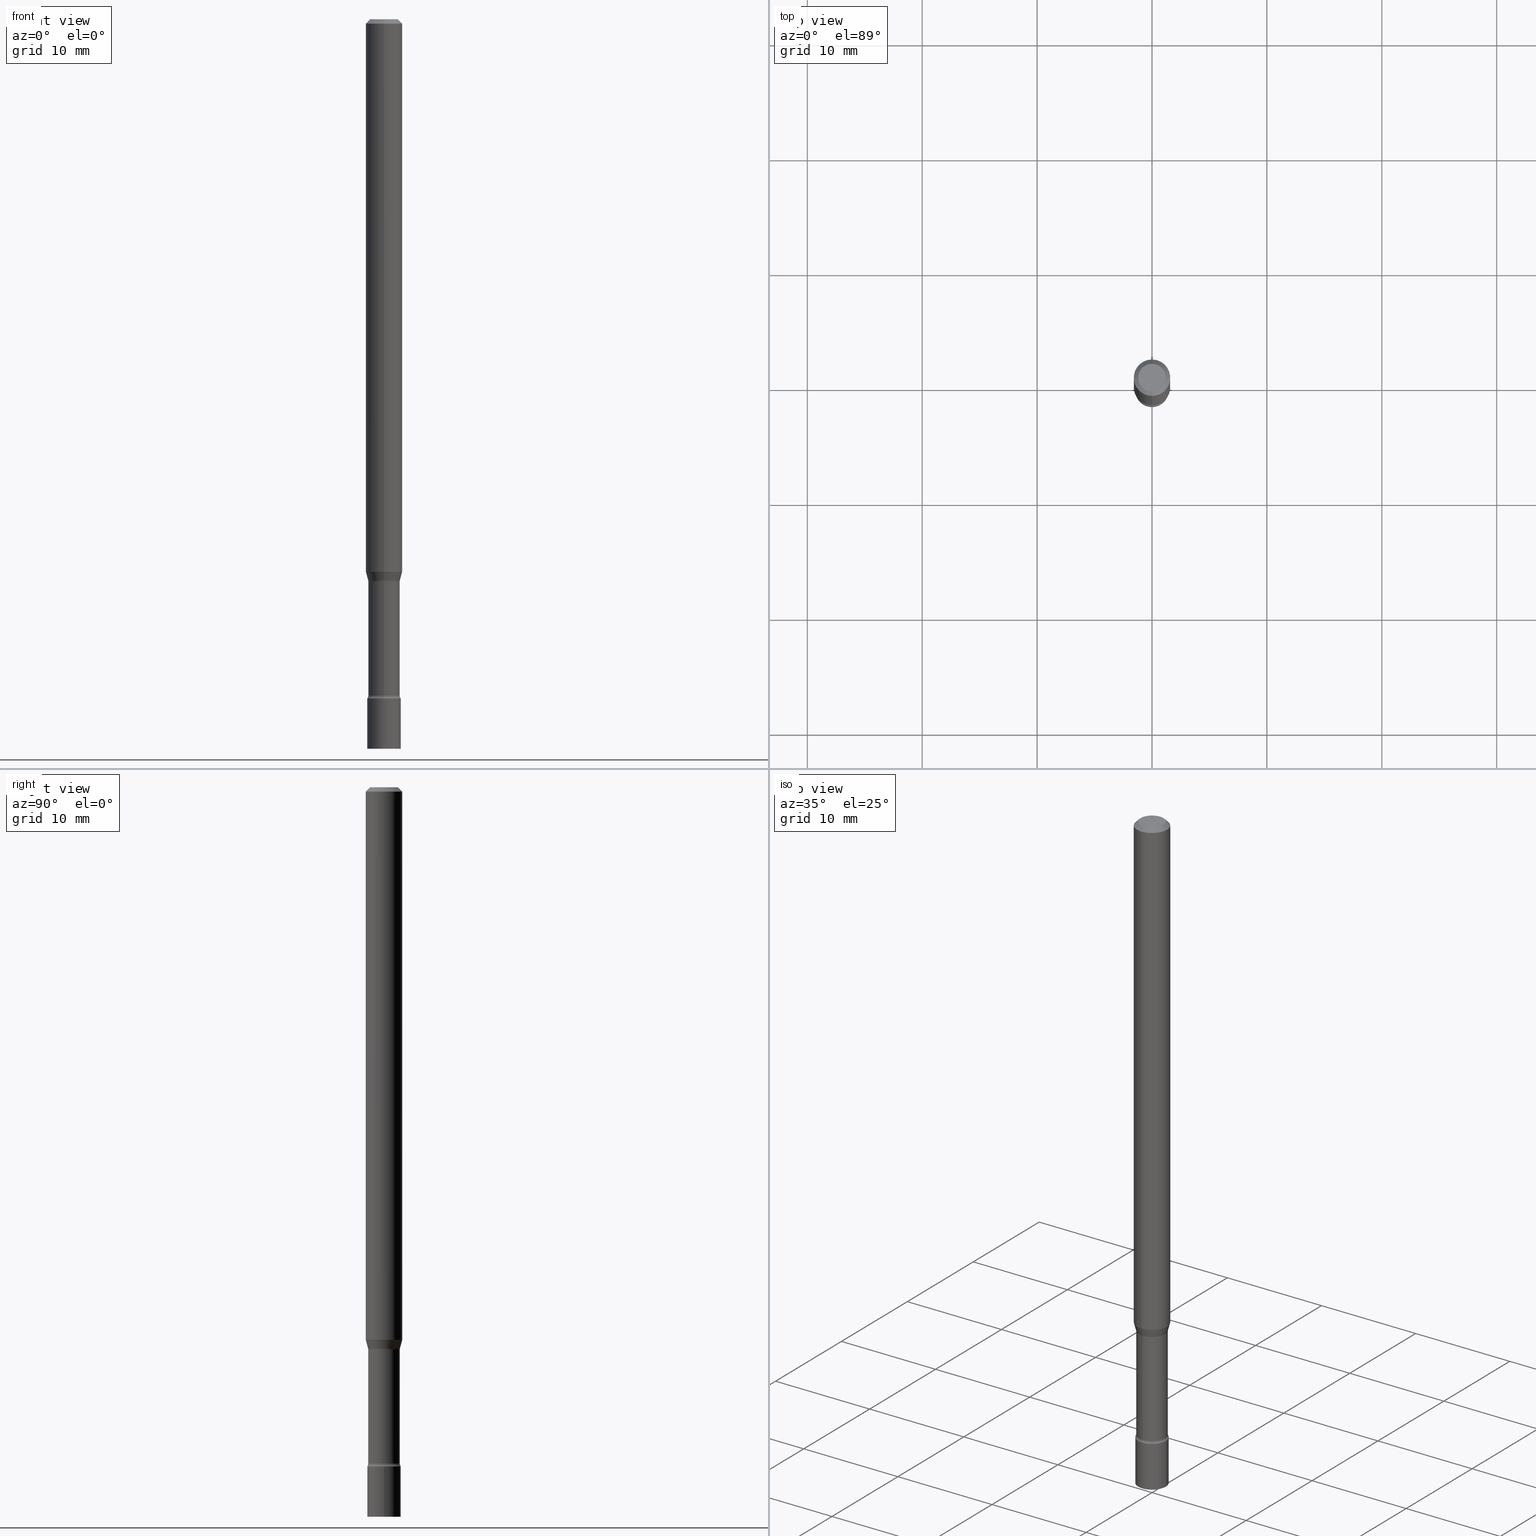
[diagram: canonical four-view strip — front | top / right | iso, engineering-drawing reading convention]
A machine part, canonical four-view strip (front | top / right | iso — engineering-drawing reading convention). The complete STEP part file that produces these views, byte-faithful:
ISO-10303-21;
HEADER;
FILE_DESCRIPTION (( 'STEP AP203' ),
    '1' );
FILE_NAME ('03560.STEP',
    '2024-03-08T21:49:26',
    ( '' ),
    ( '' ),
    'SwSTEP 2.0',
    'SolidWorks 2023',
    '' );
FILE_SCHEMA (( 'CONFIG_CONTROL_DESIGN' ));
ENDSEC;

DATA;
#1 = CARTESIAN_POINT ( 'NONE',  ( 4.702921816732696649E-29, -6.714356959460874574E-15, -1.923092501787273090 ) ) ;
#2 = ADVANCED_BREP_SHAPE_REPRESENTATION ( '03560', ( #334, #504, #87 ), #370 ) ;
#3 = EDGE_LOOP ( 'NONE', ( #201, #481 ) ) ;
#4 =( NAMED_UNIT ( * ) PLANE_ANGLE_UNIT ( ) SI_UNIT ( $, .RADIAN. ) );
#5 = CARTESIAN_POINT ( 'NONE',  ( 4.712356733047983098E-29, -6.727996510851133099E-15, -1.926974787463811012 ) ) ;
#6 = TOROIDAL_SURFACE ( 'NONE', #315, 0.06905000000000000027, 0.01499999999999999598 ) ;
#7 = AXIS2_PLACEMENT_3D ( 'NONE', #124, #43, #81 ) ;
#8 = AXIS2_PLACEMENT_3D ( 'NONE', #129, #52, #92 ) ;
#9 = FACE_OUTER_BOUND ( 'NONE', #12, .T. ) ;
#10 = CARTESIAN_POINT ( 'NONE',  ( 0.05750000000000000250, -4.015203539669603161E-16, 2.803801646082662941E-30 ) ) ;
#11 = ORIENTED_EDGE ( 'NONE', *, *, #142, .T. ) ;
#12 = EDGE_LOOP ( 'NONE', ( #433, #490, #127, #11 ) ) ;
#13 = EDGE_CURVE ( 'NONE', #91, #165, #487, .T. ) ;
#14 = CC_DESIGN_DATE_AND_TIME_ASSIGNMENT ( #347, #183, ( #28 ) ) ;
#15 = PERSON_AND_ORGANIZATION ( #431, #65 ) ;
#16 = DIRECTION ( 'NONE',  ( -2.445499533881974174E-29, 3.491437335032362503E-15, 1.000000000000000000 ) ) ;
#17 = CIRCLE ( 'NONE', #423, 0.04749999999999999362 ) ;
#18 = SECURITY_CLASSIFICATION_LEVEL ( 'unclassified' ) ;
#19 = DIRECTION ( 'NONE',  ( -2.445499533881974174E-29, 3.491437335032362109E-15, 1.000000000000000000 ) ) ;
#20 = APPLICATION_PROTOCOL_DEFINITION ( 'international standard', 'config_control_design', 1994, #23 ) ;
#21 = PRODUCT_DEFINITION_SHAPE ( 'NONE', 'NONE',  #238 ) ;
#22 = LINE ( 'NONE', #269, #121 ) ;
#23 = APPLICATION_CONTEXT ( 'configuration controlled 3d designs of mechanical parts and assemblies' ) ;
#24 = DATE_AND_TIME ( #217, #381 ) ;
#25 = CARTESIAN_POINT ( 'NONE',  ( 3.840483486783343535E-16, 0.05405000000000003552, -1.887121879584992843E-16 ) ) ;
#26 = CIRCLE ( 'NONE', #405, 0.01499999999999997689 ) ;
#27 = ORIENTED_EDGE ( 'NONE', *, *, #47, .F. ) ;
#28 = SECURITY_CLASSIFICATION ( '', '', #18 ) ;
#29 = CARTESIAN_POINT ( 'NONE',  ( 7.071406723349968136E-46, -1.009584058513850908E-31, -2.891600110888122331E-17 ) ) ;
#30 = EDGE_CURVE ( 'NONE', #435, #94, #331, .T. ) ;
#31 = DIRECTION ( 'NONE',  ( -6.982962677686265922E-15, -1.000000000000000000, 4.370956789862821150E-15 ) ) ;
#32 = PRODUCT_RELATED_PRODUCT_CATEGORY ( 'detail', '', ( #410 ) ) ;
#33 = FACE_OUTER_BOUND ( 'NONE', #204, .T. ) ;
#34 = ORIENTED_EDGE ( 'NONE', *, *, #472, .F. ) ;
#35 = CIRCLE ( 'NONE', #502, 0.01500000000000000291 ) ;
#36 = DIRECTION ( 'NONE',  ( -1.000000000000000000, 6.982962677686265922E-15, -4.876176775795935793E-29 ) ) ;
#37 = CC_DESIGN_APPROVAL ( #41, ( #28 ) ) ;
#38 = ORIENTED_EDGE ( 'NONE', *, *, #283, .F. ) ;
#39 = EDGE_CURVE ( 'NONE', #128, #350, #141, .T. ) ;
#40 = DIRECTION ( 'NONE',  ( -6.982962677686265922E-15, -1.000000000000000000, 5.006950670908182148E-15 ) ) ;
#41 = APPROVAL ( #503, 'UNSPECIFIED' ) ;
#42 = ORIENTED_EDGE ( 'NONE', *, *, #357, .F. ) ;
#43 = DIRECTION ( 'NONE',  ( -2.445499533881974174E-29, 3.491437335032362109E-15, 1.000000000000000000 ) ) ;
#44 = ORIENTED_EDGE ( 'NONE', *, *, #258, .T. ) ;
#45 = DIRECTION ( 'NONE',  ( -2.445499533881974174E-29, 3.491437335032362109E-15, 1.000000000000000000 ) ) ;
#46 = VECTOR ( 'NONE', #218, 39.37007874015748143 ) ;
#47 = EDGE_CURVE ( 'NONE', #240, #435, #99, .T. ) ;
#48 = FACE_OUTER_BOUND ( 'NONE', #514, .T. ) ;
#49 = ORIENTED_EDGE ( 'NONE', *, *, #181, .F. ) ;
#50 = CARTESIAN_POINT ( 'NONE',  ( 4.440892098500625669E-16, 0.06250000000000000000, -2.182148334395226318E-16 ) ) ;
#51 = FACE_OUTER_BOUND ( 'NONE', #520, .T. ) ;
#52 = DIRECTION ( 'NONE',  ( -2.445499533881974174E-29, 3.491437335032362109E-15, 1.000000000000000000 ) ) ;
#53 = DIRECTION ( 'NONE',  ( -2.445499533881974174E-29, 3.491437335032362109E-15, 1.000000000000000000 ) ) ;
#54 = AXIS2_PLACEMENT_3D ( 'NONE', #1, #356, #40 ) ;
#55 = AXIS2_PLACEMENT_3D ( 'NONE', #298, #56, #259 ) ;
#56 = DIRECTION ( 'NONE',  ( -2.445468806185136597E-29, 3.491481338843145583E-15, 1.000000000000000000 ) ) ;
#57 = CARTESIAN_POINT ( 'NONE',  ( -4.364351673553916201E-16, -0.06250000000000000000, 2.182148334395226318E-16 ) ) ;
#58 = EDGE_CURVE ( 'NONE', #386, #377, #89, .T. ) ;
#59 = DIRECTION ( 'NONE',  ( -6.982962677686265922E-15, -1.000000000000000000, 3.491437335032362109E-15 ) ) ;
#60 = DIRECTION ( 'NONE',  ( -2.445499533881974174E-29, 3.491437335032362109E-15, 1.000000000000000000 ) ) ;
#61 = CALENDAR_DATE ( 2024, 8, 3 ) ;
#62 = CARTESIAN_POINT ( 'NONE',  ( -4.287811248607203282E-16, -0.06250000000000005551, -0.01499999999999981209 ) ) ;
#63 = EDGE_CURVE ( 'NONE', #377, #337, #414, .T. ) ;
#64 = CIRCLE ( 'NONE', #389, 0.06250000000000000000 ) ;
#65 = ORGANIZATION ( 'UNSPECIFIED', 'UNSPECIFIED', '' ) ;
#66 = CALENDAR_DATE ( 2024, 8, 3 ) ;
#67 = CARTESIAN_POINT ( 'NONE',  ( 5.667272374969495812E-29, -8.091159324964724152E-15, -2.317429341715430802 ) ) ;
#68 = PLANE ( 'NONE',  #363 ) ;
#69 = SHAPE_DEFINITION_REPRESENTATION ( #21, #2 ) ;
#70 = DIRECTION ( 'NONE',  ( -1.000000000000000000, 6.982962677686265922E-15, -4.883557194083112340E-29 ) ) ;
#71 = AXIS2_PLACEMENT_3D ( 'NONE', #106, #188, #428 ) ;
#72 = DIRECTION ( 'NONE',  ( -6.982962677686265922E-15, -1.000000000000000000, 5.054297860618433521E-15 ) ) ;
#73 = PLANE ( 'NONE',  #130 ) ;
#74 = EDGE_LOOP ( 'NONE', ( #294, #497 ) ) ;
#75 = CARTESIAN_POINT ( 'NONE',  ( 4.702921816732696649E-29, -6.714356959460874574E-15, -1.923092501787273090 ) ) ;
#76 = ORIENTED_EDGE ( 'NONE', *, *, #145, .T. ) ;
#77 = CIRCLE ( 'NONE', #369, 0.05405000000000007021 ) ;
#78 = DIRECTION ( 'NONE',  ( -6.982962677686265922E-15, -1.000000000000000000, 5.054297860618433521E-15 ) ) ;
#79 = AXIS2_PLACEMENT_3D ( 'NONE', #328, #336, #452 ) ;
#80 = ORIENTED_EDGE ( 'NONE', *, *, #480, .F. ) ;
#81 = DIRECTION ( 'NONE',  ( -6.982962677686265922E-15, -1.000000000000000000, 5.006950670908182148E-15 ) ) ;
#82 = ORIENTED_EDGE ( 'NONE', *, *, #135, .F. ) ;
#83 = ADVANCED_FACE ( 'NONE', ( #51 ), #6, .F. ) ;
#84 = CARTESIAN_POINT ( 'NONE',  ( -3.809982129783424300E-16, -0.05456111260567072380, -1.923092501787272868 ) ) ;
#85 = CIRCLE ( 'NONE', #196, 0.01499999999999997689 ) ;
#86 = ORIENTED_EDGE ( 'NONE', *, *, #228, .T. ) ;
#87 = AXIS2_PLACEMENT_3D ( 'NONE', #293, #448, #464 ) ;
#88 = DIRECTION ( 'NONE',  ( -2.445499533881974174E-29, 3.491437335032362503E-15, 1.000000000000000000 ) ) ;
#89 = LINE ( 'NONE', #453, #459 ) ;
#90 = DIRECTION ( 'NONE',  ( -2.445499533881974174E-29, 3.491437335032362109E-15, 1.000000000000000000 ) ) ;
#91 = VERTEX_POINT ( 'NONE', #209 ) ;
#92 = DIRECTION ( 'NONE',  ( -6.982962677686265922E-15, -1.000000000000000000, 3.491437335032361714E-15 ) ) ;
#93 = EDGE_CURVE ( 'NONE', #128, #330, #26, .T. ) ;
#94 = VERTEX_POINT ( 'NONE', #214 ) ;
#95 = CC_DESIGN_PERSON_AND_ORGANIZATION_ASSIGNMENT ( #150, #461, ( #257 ) ) ;
#96 = VECTOR ( 'NONE', #144, 39.37007874015748143 ) ;
#97 = AXIS2_PLACEMENT_3D ( 'NONE', #213, #90, #59 ) ;
#98 =( LENGTH_UNIT ( ) NAMED_UNIT ( * ) SI_UNIT ( $, .METRE. ) );
#99 = LINE ( 'NONE', #10, #170 ) ;
#100 = CALENDAR_DATE ( 2024, 8, 3 ) ;
#101 = DIRECTION ( 'NONE',  ( -2.445499533881974174E-29, 3.491437335032362109E-15, 1.000000000000000000 ) ) ;
#102 = EDGE_CURVE ( 'NONE', #175, #377, #64, .T. ) ;
#103 = AXIS2_PLACEMENT_3D ( 'NONE', #412, #250, #368 ) ;
#104 = VECTOR ( 'NONE', #432, 39.37007874015748143 ) ;
#105 = PERSON_AND_ORGANIZATION ( #431, #65 ) ;
#106 = CARTESIAN_POINT ( 'NONE',  ( 4.906297590423963147E-16, 0.06904999999999326954, -1.926974787463811456 ) ) ;
#107 = COORDINATED_UNIVERSAL_TIME_OFFSET ( 5, 0, .BEHIND. ) ;
#108 = CARTESIAN_POINT ( 'NONE',  ( -3.774291327288865224E-16, -0.05405000000000816096, -2.317429341715430358 ) ) ;
#109 = CARTESIAN_POINT ( 'NONE',  ( -4.821735728941896048E-16, -0.06905000000000673099, -1.926974787463810790 ) ) ;
#110 = EDGE_CURVE ( 'NONE', #165, #91, #17, .T. ) ;
#111 = CC_DESIGN_PERSON_AND_ORGANIZATION_ASSIGNMENT ( #105, #268, ( #28 ) ) ;
#112 = ORIENTED_EDGE ( 'NONE', *, *, #30, .F. ) ;
#113 = CIRCLE ( 'NONE', #308, 0.06250000000000000000 ) ;
#114 = CIRCLE ( 'NONE', #55, 0.05750000000000000250 ) ;
#115 = CARTESIAN_POINT ( 'NONE',  ( -0.05750000000000000250, 4.085620730620576246E-16, -2.828387676896570712E-30 ) ) ;
#116 = DIRECTION ( 'NONE',  ( -2.438088387897960049E-29, 3.491481338843145188E-15, 1.000000000000000000 ) ) ;
#117 = ORIENTED_EDGE ( 'NONE', *, *, #58, .F. ) ;
#118 = CARTESIAN_POINT ( 'NONE',  ( 3.668249300822969055E-31, -5.237156002548554183E-17, -0.01500000000000003067 ) ) ;
#119 = ORIENTED_EDGE ( 'NONE', *, *, #242, .T. ) ;
#120 = CLOSED_SHELL ( 'NONE', ( #83, #407, #208, #507, #489, #378, #297, #469, #279, #179, #305, #500, #447, #221 ) ) ;
#121 = VECTOR ( 'NONE', #186, 39.37007874015748143 ) ;
#122 = DIRECTION ( 'NONE',  ( -2.445499533881974174E-29, 3.491437335032362109E-15, 1.000000000000000000 ) ) ;
#123 = ORIENTED_EDGE ( 'NONE', *, *, #320, .T. ) ;
#124 = CARTESIAN_POINT ( 'NONE',  ( 4.702921816732696649E-29, -6.714356959460874574E-15, -1.923092501787273090 ) ) ;
#125 = EDGE_LOOP ( 'NONE', ( #335, #353, #402, #177 ) ) ;
#126 = CARTESIAN_POINT ( 'NONE',  ( 0.05750000000000000250, -8.526197429454961062E-15, -2.326999999999999957 ) ) ;
#127 = ORIENTED_EDGE ( 'NONE', *, *, #93, .T. ) ;
#128 = VERTEX_POINT ( 'NONE', #108 ) ;
#129 = CARTESIAN_POINT ( 'NONE',  ( 0.000000000000000000, 0.000000000000000000, 0.000000000000000000 ) ) ;
#130 = AXIS2_PLACEMENT_3D ( 'NONE', #157, #205, #515 ) ;
#131 = ORIENTED_EDGE ( 'NONE', *, *, #181, .T. ) ;
#132 = AXIS2_PLACEMENT_3D ( 'NONE', #251, #365, #411 ) ;
#133 = CARTESIAN_POINT ( 'NONE',  ( 0.000000000000000000, 0.000000000000000000, 0.000000000000000000 ) ) ;
#134 = ORIENTED_EDGE ( 'NONE', *, *, #203, .T. ) ;
#135 = EDGE_CURVE ( 'NONE', #94, #435, #325, .T. ) ;
#136 = ORIENTED_EDGE ( 'NONE', *, *, #286, .F. ) ;
#137 = DIRECTION ( 'NONE',  ( -2.445499533881974174E-29, 3.491437335032362109E-15, 1.000000000000000000 ) ) ;
#138 = ORIENTED_EDGE ( 'NONE', *, *, #465, .F. ) ;
#139 = CIRCLE ( 'NONE', #54, 0.05456111260566401389 ) ;
#140 = APPROVAL_STATUS ( 'not_yet_approved' ) ;
#141 = LINE ( 'NONE', #252, #396 ) ;
#142 = EDGE_CURVE ( 'NONE', #330, #512, #354, .T. ) ;
#143 = COORDINATED_UNIVERSAL_TIME_OFFSET ( 5, 0, .BEHIND. ) ;
#144 = DIRECTION ( 'NONE',  ( 1.839019923739602682E-15, 0.2588190451025252914, 0.9659258262890670910 ) ) ;
#145 = EDGE_CURVE ( 'NONE', #339, #512, #85, .T. ) ;
#146 = DATE_AND_TIME ( #100, #451 ) ;
#147 = DIRECTION ( 'NONE',  ( -6.982962677686266711E-15, -1.000000000000000000, 3.491437335032362109E-15 ) ) ;
#148 = AXIS2_PLACEMENT_3D ( 'NONE', #319, #282, #78 ) ;
#149 = AXIS2_PLACEMENT_3D ( 'NONE', #249, #413, #207 ) ;
#150 = PERSON_AND_ORGANIZATION ( #431, #65 ) ;
#151 = DIRECTION ( 'NONE',  ( 2.445499533881973613E-29, -3.491437335032362503E-15, -1.000000000000000000 ) ) ;
#152 = EDGE_CURVE ( 'NONE', #339, #327, #153, .T. ) ;
#153 = LINE ( 'NONE', #25, #246 ) ;
#154 = CARTESIAN_POINT ( 'NONE',  ( -3.773273898774340269E-16, -0.04749999999999999362, 1.369272723051559529E-16 ) ) ;
#155 = CIRCLE ( 'NONE', #509, 0.05456111260566401389 ) ;
#156 = EDGE_CURVE ( 'NONE', #366, #327, #379, .T. ) ;
#157 = CARTESIAN_POINT ( 'NONE',  ( 4.015203539670172127E-16, 0.05749999999999187705, -2.327000000000000401 ) ) ;
#158 = EDGE_LOOP ( 'NONE', ( #138, #329, #400, #493 ) ) ;
#159 = CARTESIAN_POINT ( 'NONE',  ( 4.440892098501091590E-16, 0.06249999999999995143, -0.01500000000000024751 ) ) ;
#160 = ORIENTED_EDGE ( 'NONE', *, *, #47, .T. ) ;
#161 = DIRECTION ( 'NONE',  ( 2.438088387897960049E-29, -3.491481338843145188E-15, -1.000000000000000000 ) ) ;
#162 = EDGE_LOOP ( 'NONE', ( #195, #136, #134, #244 ) ) ;
#163 = AXIS2_PLACEMENT_3D ( 'NONE', #223, #429, #307 ) ;
#164 = DIRECTION ( 'NONE',  ( -2.445499533881974174E-29, 3.491437335032362109E-15, 1.000000000000000000 ) ) ;
#165 = VERTEX_POINT ( 'NONE', #154 ) ;
#166 = UNCERTAINTY_MEASURE_WITH_UNIT (LENGTH_MEASURE( 1.000000000000000082E-05 ), #408, 'distance_accuracy_value', 'NONE');
#167 = CARTESIAN_POINT ( 'NONE',  ( 5.667201165703240905E-29, -8.091261300686981315E-15, -2.317429341715430802 ) ) ;
#168 = ORIENTED_EDGE ( 'NONE', *, *, #93, .F. ) ;
#169 = DIRECTION ( 'NONE',  ( -2.445499533881974174E-29, 3.491437335032362503E-15, 1.000000000000000000 ) ) ;
#170 = VECTOR ( 'NONE', #256, 39.37007874015748143 ) ;
#171 = AXIS2_PLACEMENT_3D ( 'NONE', #394, #352, #232 ) ;
#172 = ORIENTED_EDGE ( 'NONE', *, *, #243, .T. ) ;
#173 = CC_DESIGN_APPROVAL ( #454, ( #257 ) ) ;
#174 = FACE_OUTER_BOUND ( 'NONE', #468, .T. ) ;
#175 = VERTEX_POINT ( 'NONE', #220 ) ;
#176 = LINE ( 'NONE', #50, #309 ) ;
#177 = ORIENTED_EDGE ( 'NONE', *, *, #102, .F. ) ;
#178 = ORIENTED_EDGE ( 'NONE', *, *, #39, .F. ) ;
#179 = ADVANCED_FACE ( 'NONE', ( #425 ), #348, .F. ) ;
#180 = PERSON_AND_ORGANIZATION ( #431, #65 ) ;
#181 = EDGE_CURVE ( 'NONE', #91, #318, #22, .T. ) ;
#182 = AXIS2_PLACEMENT_3D ( 'NONE', #265, #466, #349 ) ;
#183 = DATE_TIME_ROLE ( 'classification_date' ) ;
#184 = LINE ( 'NONE', #62, #46 ) ;
#185 = PERSON_AND_ORGANIZATION ( #431, #65 ) ;
#186 = DIRECTION ( 'NONE',  ( 4.937700262164548042E-15, 0.7071067811865451302, -0.7071067811865499042 ) ) ;
#187 = MECHANICAL_CONTEXT ( 'NONE', #239, 'mechanical' ) ;
#188 = DIRECTION ( 'NONE',  ( 1.000000000000000000, -7.105427357601001070E-15, 4.926314969650821947E-29 ) ) ;
#189 = AXIS2_PLACEMENT_3D ( 'NONE', #304, #19, #72 ) ;
#190 = EDGE_LOOP ( 'NONE', ( #34, #80 ) ) ;
#191 = DATE_TIME_ROLE ( 'creation_date' ) ;
#192 = CARTESIAN_POINT ( 'NONE',  ( 4.906297590424060768E-16, 0.06904999999999195115, -2.317429341715430802 ) ) ;
#193 = CARTESIAN_POINT ( 'NONE',  ( 0.05750000000000000250, -9.130223701074824963E-15, -2.500000000000000000 ) ) ;
#194 = DIRECTION ( 'NONE',  ( 1.000000000000000000, -6.982962677686265922E-15, 4.876176775795935232E-29 ) ) ;
#195 = ORIENTED_EDGE ( 'NONE', *, *, #156, .F. ) ;
#196 = AXIS2_PLACEMENT_3D ( 'NONE', #192, #506, #463 ) ;
#197 = CIRCLE ( 'NONE', #132, 0.05750000000000000250 ) ;
#198 = CARTESIAN_POINT ( 'NONE',  ( -4.015203539669033702E-16, -0.05750000000000811406, -2.326999999999999957 ) ) ;
#199 = ORIENTED_EDGE ( 'NONE', *, *, #152, .T. ) ;
#200 = DIRECTION ( 'NONE',  ( -6.982962677686265922E-15, -1.000000000000000000, 5.006950670908182148E-15 ) ) ;
#201 = ORIENTED_EDGE ( 'NONE', *, *, #13, .T. ) ;
#202 = FACE_OUTER_BOUND ( 'NONE', #74, .T. ) ;
#203 = EDGE_CURVE ( 'NONE', #386, #350, #35, .T. ) ;
#204 = EDGE_LOOP ( 'NONE', ( #443, #483, #131, #119 ) ) ;
#205 = DIRECTION ( 'NONE',  ( -2.445499533881973613E-29, 3.491437335032362503E-15, 1.000000000000000000 ) ) ;
#206 = ORIENTED_EDGE ( 'NONE', *, *, #63, .F. ) ;
#207 = DIRECTION ( 'NONE',  ( -6.982962677686265922E-15, -1.000000000000000000, 3.491437335032362109E-15 ) ) ;
#208 = ADVANCED_FACE ( 'NONE', ( #456 ), #479, .F. ) ;
#209 = CARTESIAN_POINT ( 'NONE',  ( 3.840629472727447874E-16, 0.04749999999999999362, -1.947592745229184365E-16 ) ) ;
#210 = CYLINDRICAL_SURFACE ( 'NONE', #97, 0.06250000000000000000 ) ;
#211 = CONICAL_SURFACE ( 'NONE', #274, 0.05456111260566401389, 0.2617993877991506291 ) ;
#212 = DIRECTION ( 'NONE',  ( -6.982962677686265922E-15, -1.000000000000000000, 3.491437335032361714E-15 ) ) ;
#213 = CARTESIAN_POINT ( 'NONE',  ( 0.000000000000000000, 0.000000000000000000, 0.000000000000000000 ) ) ;
#214 = CARTESIAN_POINT ( 'NONE',  ( -0.05750000000000000250, -8.018128138235874628E-15, -2.326999999999999957 ) ) ;
#215 = CC_DESIGN_DATE_AND_TIME_ASSIGNMENT ( #146, #191, ( #238 ) ) ;
#216 = DIRECTION ( 'NONE',  ( -6.982962677686265922E-15, -1.000000000000000000, 4.370956789862821150E-15 ) ) ;
#217 = CALENDAR_DATE ( 2024, 8, 3 ) ;
#218 = DIRECTION ( 'NONE',  ( -4.851104656540964275E-15, -0.7071067811865500152, -0.7071067811865450192 ) ) ;
#219 = AXIS2_PLACEMENT_3D ( 'NONE', #227, #391, #31 ) ;
#220 = CARTESIAN_POINT ( 'NONE',  ( 4.440892098501089617E-16, 0.06249999999999341499, -1.893464170676043556 ) ) ;
#221 = ADVANCED_FACE ( 'NONE', ( #312 ), #340, .F. ) ;
#222 = PERSON_AND_ORGANIZATION_ROLE ( 'design_owner' ) ;
#223 = CARTESIAN_POINT ( 'NONE',  ( 5.690677415343354746E-29, -8.124574678620306876E-15, -2.326999999999999957 ) ) ;
#224 = CARTESIAN_POINT ( 'NONE',  ( 5.667201165703240905E-29, -8.091261300686981315E-15, -2.317429341715430802 ) ) ;
#225 = AXIS2_PLACEMENT_3D ( 'NONE', #467, #151, #311 ) ;
#226 = AXIS2_PLACEMENT_3D ( 'NONE', #167, #137, #338 ) ;
#227 = CARTESIAN_POINT ( 'NONE',  ( 4.630465746810483231E-29, -6.610911498044426142E-15, -1.893464170676043334 ) ) ;
#228 = EDGE_CURVE ( 'NONE', #327, #350, #444, .T. ) ;
#229 = EDGE_CURVE ( 'NONE', #377, #175, #470, .T. ) ;
#230 = CARTESIAN_POINT ( 'NONE',  ( 0.000000000000000000, 0.000000000000000000, 0.000000000000000000 ) ) ;
#231 = ORIENTED_EDGE ( 'NONE', *, *, #229, .T. ) ;
#232 = DIRECTION ( 'NONE',  ( -6.982962677686265922E-15, -1.000000000000000000, 4.751039988981327336E-15 ) ) ;
#233 = VECTOR ( 'NONE', #16, 39.37007874015748143 ) ;
#234 = ORIENTED_EDGE ( 'NONE', *, *, #228, .F. ) ;
#235 = AXIS2_PLACEMENT_3D ( 'NONE', #230, #276, #194 ) ;
#236 = TOROIDAL_SURFACE ( 'NONE', #226, 0.06905000000000004190, 0.01499999999999997863 ) ;
#237 = CARTESIAN_POINT ( 'NONE',  ( -4.364351673553451266E-16, -0.06250000000000657807, -1.893464170676043112 ) ) ;
#238 = PRODUCT_DEFINITION ( 'UNKNOWN', '', #257, #441 ) ;
#239 = APPLICATION_CONTEXT ( 'configuration controlled 3d designs of mechanical parts and assemblies' ) ;
#240 = VERTEX_POINT ( 'NONE', #193 ) ;
#241 = CARTESIAN_POINT ( 'NONE',  ( 3.668249300822969055E-31, -5.237156002548554183E-17, -0.01500000000000003067 ) ) ;
#242 = EDGE_CURVE ( 'NONE', #318, #337, #113, .T. ) ;
#243 = EDGE_CURVE ( 'NONE', #339, #128, #77, .T. ) ;
#244 = ORIENTED_EDGE ( 'NONE', *, *, #322, .T. ) ;
#245 = DIRECTION ( 'NONE',  ( -2.445499533881974174E-29, 3.491437335032362109E-15, 1.000000000000000000 ) ) ;
#246 = VECTOR ( 'NONE', #271, 39.37007874015748143 ) ;
#247 = LENGTH_MEASURE_WITH_UNIT ( LENGTH_MEASURE( 0.02539999999999999897 ), #98 );
#248 = EDGE_LOOP ( 'NONE', ( #42, #484, #160, #82 ) ) ;
#249 = CARTESIAN_POINT ( 'NONE',  ( 0.000000000000000000, 0.000000000000000000, 0.000000000000000000 ) ) ;
#250 = DIRECTION ( 'NONE',  ( -2.445468806185136597E-29, 3.491481338843145583E-15, 1.000000000000000000 ) ) ;
#251 = CARTESIAN_POINT ( 'NONE',  ( 6.113672015462842613E-29, -8.728703347107864943E-15, -2.500000000000000000 ) ) ;
#252 = CARTESIAN_POINT ( 'NONE',  ( -3.774291327289429259E-16, -0.05405000000000003552, 1.887121879584992843E-16 ) ) ;
#253 = DIMENSIONAL_EXPONENTS ( 1.000000000000000000, 0.000000000000000000, 0.000000000000000000, 0.000000000000000000, 0.000000000000000000, 0.000000000000000000, 0.000000000000000000 ) ;
#254 = FACE_OUTER_BOUND ( 'NONE', #321, .T. ) ;
#255 = AXIS2_PLACEMENT_3D ( 'NONE', #224, #498, #422 ) ;
#256 = DIRECTION ( 'NONE',  ( -2.445468806185136877E-29, 3.491481338843145188E-15, 1.000000000000000000 ) ) ;
#257 = PRODUCT_DEFINITION_FORMATION_WITH_SPECIFIED_SOURCE ( 'ANY', '', #410, .NOT_KNOWN. ) ;
#258 = EDGE_CURVE ( 'NONE', #165, #337, #184, .T. ) ;
#259 = DIRECTION ( 'NONE',  ( 1.000000000000000000, -6.982962677686256455E-15, 0.000000000000000000 ) ) ;
#260 = DIRECTION ( 'NONE',  ( -1.807323732225332900E-15, -0.2588190451025185190, 0.9659258262890689783 ) ) ;
#261 = EDGE_CURVE ( 'NONE', #366, #175, #382, .T. ) ;
#262 = PERSON_AND_ORGANIZATION_ROLE ( 'creator' ) ;
#263 = DIRECTION ( 'NONE',  ( -6.982962677686265922E-15, -1.000000000000000000, 5.054297860618426422E-15 ) ) ;
#264 = AXIS2_PLACEMENT_3D ( 'NONE', #446, #300, #409 ) ;
#265 = CARTESIAN_POINT ( 'NONE',  ( 5.690605911992812897E-29, -8.124677075487999464E-15, -2.326999999999999957 ) ) ;
#266 = CIRCLE ( 'NONE', #488, 0.05405000000000007021 ) ;
#267 = LOCAL_TIME ( 16, 49, 26.00000000000000000, #107 ) ;
#268 = PERSON_AND_ORGANIZATION_ROLE ( 'classification_officer' ) ;
#269 = CARTESIAN_POINT ( 'NONE',  ( 4.364351673553919652E-16, 0.06249999999999995143, -0.01500000000000024751 ) ) ;
#270 = APPROVAL_DATE_TIME ( #343, #41 ) ;
#271 = DIRECTION ( 'NONE',  ( -2.445499533881974174E-29, 3.491437335032362503E-15, 1.000000000000000000 ) ) ;
#272 = ADVANCED_FACE ( 'NONE', ( #383 ), #68, .T. ) ;
#273 = DIRECTION ( 'NONE',  ( -2.445499533881974174E-29, 3.491437335032362109E-15, 1.000000000000000000 ) ) ;
#274 = AXIS2_PLACEMENT_3D ( 'NONE', #75, #45, #278 ) ;
#275 = CYLINDRICAL_SURFACE ( 'NONE', #235, 0.05750000000000000250 ) ;
#276 = DIRECTION ( 'NONE',  ( -2.445468806185136597E-29, 3.491481338843145583E-15, 1.000000000000000000 ) ) ;
#277 = ORIENTED_EDGE ( 'NONE', *, *, #286, .T. ) ;
#278 = DIRECTION ( 'NONE',  ( -6.982962677686265922E-15, -1.000000000000000000, 5.006950670908182148E-15 ) ) ;
#279 = ADVANCED_FACE ( 'NONE', ( #33 ), #281, .T. ) ;
#280 = ORIENTED_EDGE ( 'NONE', *, *, #110, .F. ) ;
#281 = CONICAL_SURFACE ( 'NONE', #519, 0.06250000000000000000, 0.7853981633974483900 ) ;
#282 = DIRECTION ( 'NONE',  ( -2.445499533881974174E-29, 3.491437335032362109E-15, 1.000000000000000000 ) ) ;
#283 = EDGE_CURVE ( 'NONE', #366, #386, #139, .T. ) ;
#284 = ORIENTED_EDGE ( 'NONE', *, *, #395, .T. ) ;
#285 = CARTESIAN_POINT ( 'NONE',  ( 4.702921816732696649E-29, -6.714356959460874574E-15, -1.923092501787273090 ) ) ;
#286 = EDGE_CURVE ( 'NONE', #386, #366, #155, .T. ) ;
#287 = CYLINDRICAL_SURFACE ( 'NONE', #8, 0.05405000000000003552 ) ;
#288 = ADVANCED_FACE ( 'NONE', ( #317 ), #510, .T. ) ;
#289 = CLOSED_SHELL ( 'NONE', ( #419, #288, #314, #272 ) ) ;
#290 = AXIS2_PLACEMENT_3D ( 'NONE', #442, #116, #359 ) ;
#291 = CYLINDRICAL_SURFACE ( 'NONE', #316, 0.05750000000000000250 ) ;
#292 = ORIENTED_EDGE ( 'NONE', *, *, #39, .T. ) ;
#293 = CARTESIAN_POINT ( 'NONE',  ( 0.000000000000000000, 0.000000000000000000, 0.000000000000000000 ) ) ;
#294 = ORIENTED_EDGE ( 'NONE', *, *, #142, .F. ) ;
#295 = CC_DESIGN_PERSON_AND_ORGANIZATION_ASSIGNMENT ( #341, #262, ( #238 ) ) ;
#296 = ORIENTED_EDGE ( 'NONE', *, *, #371, .T. ) ;
#297 = ADVANCED_FACE ( 'NONE', ( #475 ), #211, .T. ) ;
#298 = CARTESIAN_POINT ( 'NONE',  ( 6.113672015462842613E-29, -8.728703347107864943E-15, -2.500000000000000000 ) ) ;
#299 = AXIS2_PLACEMENT_3D ( 'NONE', #346, #273, #501 ) ;
#300 = DIRECTION ( 'NONE',  ( -2.445499533881974174E-29, 3.491437335032362109E-15, 1.000000000000000000 ) ) ;
#301 = APPROVAL_ROLE ( '' ) ;
#302 = ORIENTED_EDGE ( 'NONE', *, *, #322, .F. ) ;
#303 = APPROVAL_STATUS ( 'not_yet_approved' ) ;
#304 = CARTESIAN_POINT ( 'NONE',  ( 4.712415944545066253E-29, -6.727911716617200935E-15, -1.926974787463811012 ) ) ;
#305 = ADVANCED_FACE ( 'NONE', ( #202 ), #73, .F. ) ;
#306 = APPROVAL_ROLE ( '' ) ;
#307 = DIRECTION ( 'NONE',  ( -6.982962677686265922E-15, -1.000000000000000000, 4.751039988981327336E-15 ) ) ;
#308 = AXIS2_PLACEMENT_3D ( 'NONE', #426, #351, #508 ) ;
#309 = VECTOR ( 'NONE', #88, 39.37007874015748143 ) ;
#310 = APPROVAL_ROLE ( '' ) ;
#311 = DIRECTION ( 'NONE',  ( 6.982962677686265922E-15, 1.000000000000000000, -3.491437335032362503E-15 ) ) ;
#312 = FACE_OUTER_BOUND ( 'NONE', #162, .T. ) ;
#313 = DIRECTION ( 'NONE',  ( -6.982962677686265922E-15, -1.000000000000000000, 5.054297860618426422E-15 ) ) ;
#314 = ADVANCED_FACE ( 'NONE', ( #323 ), #275, .T. ) ;
#315 = AXIS2_PLACEMENT_3D ( 'NONE', #5, #53, #212 ) ;
#316 = AXIS2_PLACEMENT_3D ( 'NONE', #133, #492, #445 ) ;
#317 = FACE_OUTER_BOUND ( 'NONE', #474, .T. ) ;
#318 = VERTEX_POINT ( 'NONE', #159 ) ;
#319 = CARTESIAN_POINT ( 'NONE',  ( 4.712415944545066253E-29, -6.727911716617200935E-15, -1.926974787463811012 ) ) ;
#320 = EDGE_CURVE ( 'NONE', #128, #339, #266, .T. ) ;
#321 = EDGE_LOOP ( 'NONE', ( #362, #486, #112, #27 ) ) ;
#322 = EDGE_CURVE ( 'NONE', #350, #327, #397, .T. ) ;
#323 = FACE_OUTER_BOUND ( 'NONE', #248, .T. ) ;
#324 = ORIENTED_EDGE ( 'NONE', *, *, #156, .T. ) ;
#325 = CIRCLE ( 'NONE', #182, 0.05750000000000000250 ) ;
#326 = FACE_OUTER_BOUND ( 'NONE', #360, .T. ) ;
#327 = VERTEX_POINT ( 'NONE', #364 ) ;
#328 = CARTESIAN_POINT ( 'NONE',  ( 3.668249300822969055E-31, -5.237156002548554183E-17, -0.01500000000000003067 ) ) ;
#329 = ORIENTED_EDGE ( 'NONE', *, *, #102, .T. ) ;
#330 = VERTEX_POINT ( 'NONE', #198 ) ;
#331 = CIRCLE ( 'NONE', #103, 0.05750000000000000250 ) ;
#332 = AXIS2_PLACEMENT_3D ( 'NONE', #241, #245, #361 ) ;
#333 = CC_DESIGN_SECURITY_CLASSIFICATION ( #28, ( #257 ) ) ;
#334 = MANIFOLD_SOLID_BREP ( 'Body-Move/Copy2[1]', #289 ) ;
#335 = ORIENTED_EDGE ( 'NONE', *, *, #261, .F. ) ;
#336 = DIRECTION ( 'NONE',  ( 2.445499533881974174E-29, -3.491437335032362109E-15, -1.000000000000000000 ) ) ;
#337 = VERTEX_POINT ( 'NONE', #434 ) ;
#338 = DIRECTION ( 'NONE',  ( -6.982962677686265922E-15, -1.000000000000000000, 3.491437335032361714E-15 ) ) ;
#339 = VERTEX_POINT ( 'NONE', #439 ) ;
#340 = TOROIDAL_SURFACE ( 'NONE', #299, 0.06905000000000000027, 0.01499999999999999598 ) ;
#341 = PERSON_AND_ORGANIZATION ( #431, #65 ) ;
#342 = EDGE_LOOP ( 'NONE', ( #440, #76, #296, #168 ) ) ;
#343 = DATE_AND_TIME ( #66, #267 ) ;
#344 = CARTESIAN_POINT ( 'NONE',  ( 3.876800221694809047E-16, 0.05456111260565730398, -1.923092501787273534 ) ) ;
#345 = PERSON_AND_ORGANIZATION ( #431, #65 ) ;
#346 = CARTESIAN_POINT ( 'NONE',  ( 4.712356733047983098E-29, -6.727996510851133099E-15, -1.926974787463811012 ) ) ;
#347 = DATE_AND_TIME ( #496, #462 ) ;
#348 = PLANE ( 'NONE',  #225 ) ;
#349 = DIRECTION ( 'NONE',  ( 1.000000000000000000, -6.982962677686273810E-15, 0.000000000000000000 ) ) ;
#350 = VERTEX_POINT ( 'NONE', #436 ) ;
#351 = DIRECTION ( 'NONE',  ( -2.445499533881974174E-29, 3.491437335032362109E-15, 1.000000000000000000 ) ) ;
#352 = DIRECTION ( 'NONE',  ( -2.445499533881974174E-29, 3.491437335032362109E-15, 1.000000000000000000 ) ) ;
#353 = ORIENTED_EDGE ( 'NONE', *, *, #283, .T. ) ;
#354 = CIRCLE ( 'NONE', #163, 0.05750000000000000250 ) ;
#355 = ORIENTED_EDGE ( 'NONE', *, *, #395, .F. ) ;
#356 = DIRECTION ( 'NONE',  ( -2.445499533881974174E-29, 3.491437335032362109E-15, 1.000000000000000000 ) ) ;
#357 = EDGE_CURVE ( 'NONE', #476, #94, #471, .T. ) ;
#358 = ORIENTED_EDGE ( 'NONE', *, *, #152, .F. ) ;
#359 = DIRECTION ( 'NONE',  ( 1.000000000000000000, -6.982962677686265922E-15, 4.876176775795935793E-29 ) ) ;
#360 = EDGE_LOOP ( 'NONE', ( #277, #449, #398, #117 ) ) ;
#361 = DIRECTION ( 'NONE',  ( -6.982962677686265922E-15, -1.000000000000000000, 3.483106191921935554E-15 ) ) ;
#362 = ORIENTED_EDGE ( 'NONE', *, *, #472, .T. ) ;
#363 = AXIS2_PLACEMENT_3D ( 'NONE', #385, #161, #36 ) ;
#364 = CARTESIAN_POINT ( 'NONE',  ( 3.840483486783908557E-16, 0.05404999999999326316, -1.926974787463811456 ) ) ;
#365 = DIRECTION ( 'NONE',  ( -2.445468806185136597E-29, 3.491481338843145583E-15, 1.000000000000000000 ) ) ;
#366 = VERTEX_POINT ( 'NONE', #392 ) ;
#367 = CARTESIAN_POINT ( 'NONE',  ( 4.085620730621143733E-16, 0.05749999999999185624, -2.327000000000000401 ) ) ;
#368 = DIRECTION ( 'NONE',  ( 1.000000000000000000, -6.982962677686273810E-15, 0.000000000000000000 ) ) ;
#369 = AXIS2_PLACEMENT_3D ( 'NONE', #67, #101, #263 ) ;
#370 =( GEOMETRIC_REPRESENTATION_CONTEXT ( 3 ) GLOBAL_UNCERTAINTY_ASSIGNED_CONTEXT ( ( #166 ) ) GLOBAL_UNIT_ASSIGNED_CONTEXT ( ( #408, #4, #374 ) ) REPRESENTATION_CONTEXT ( 'NONE', 'WORKASPACE' ) );
#371 = EDGE_CURVE ( 'NONE', #512, #330, #430, .T. ) ;
#372 = FACE_OUTER_BOUND ( 'NONE', #393, .T. ) ;
#373 = CARTESIAN_POINT ( 'NONE',  ( -4.821735728941803357E-16, -0.06905000000000813265, -2.317429341715430358 ) ) ;
#374 =( NAMED_UNIT ( * ) SI_UNIT ( $, .STERADIAN. ) SOLID_ANGLE_UNIT ( ) );
#375 = CARTESIAN_POINT ( 'NONE',  ( 4.630465746810483231E-29, -6.610911498044426142E-15, -1.893464170676043334 ) ) ;
#376 = CARTESIAN_POINT ( 'NONE',  ( -0.05750000000000000250, -8.018128138235874628E-15, -2.500000000000000000 ) ) ;
#377 = VERTEX_POINT ( 'NONE', #237 ) ;
#378 = ADVANCED_FACE ( 'NONE', ( #326 ), #460, .T. ) ;
#379 = CIRCLE ( 'NONE', #71, 0.01500000000000000291 ) ;
#380 = APPROVAL_DATE_TIME ( #387, #454 ) ;
#381 = LOCAL_TIME ( 16, 49, 26.00000000000000000, #384 ) ;
#382 = LINE ( 'NONE', #344, #96 ) ;
#383 = FACE_OUTER_BOUND ( 'NONE', #190, .T. ) ;
#384 = COORDINATED_UNIVERSAL_TIME_OFFSET ( 5, 0, .BEHIND. ) ;
#385 = CARTESIAN_POINT ( 'NONE',  ( 4.015203539670214529E-16, 0.05749999999999127337, -2.500000000000000000 ) ) ;
#386 = VERTEX_POINT ( 'NONE', #84 ) ;
#387 = DATE_AND_TIME ( #61, #424 ) ;
#388 = DIRECTION ( 'NONE',  ( -2.445499533881974174E-29, 3.491437335032362109E-15, 1.000000000000000000 ) ) ;
#389 = AXIS2_PLACEMENT_3D ( 'NONE', #375, #60, #216 ) ;
#390 = APPROVAL_PERSON_ORGANIZATION ( #15, #41, #310 ) ;
#391 = DIRECTION ( 'NONE',  ( -2.445499533881974174E-29, 3.491437335032362109E-15, 1.000000000000000000 ) ) ;
#392 = CARTESIAN_POINT ( 'NONE',  ( 4.158846160097949825E-16, 0.05456111260565730398, -1.923092501787273534 ) ) ;
#393 = EDGE_LOOP ( 'NONE', ( #231, #511, #355, #206 ) ) ;
#394 = CARTESIAN_POINT ( 'NONE',  ( 5.690677415343354746E-29, -8.124574678620306876E-15, -2.326999999999999957 ) ) ;
#395 = EDGE_CURVE ( 'NONE', #337, #318, #415, .T. ) ;
#396 = VECTOR ( 'NONE', #169, 39.37007874015748143 ) ;
#397 = CIRCLE ( 'NONE', #148, 0.05405000000000000082 ) ;
#398 = ORIENTED_EDGE ( 'NONE', *, *, #229, .F. ) ;
#399 = DIRECTION ( 'NONE',  ( 6.982962677686265922E-15, 1.000000000000000000, -3.483106191921935554E-15 ) ) ;
#400 = ORIENTED_EDGE ( 'NONE', *, *, #63, .T. ) ;
#401 = FACE_OUTER_BOUND ( 'NONE', #491, .T. ) ;
#402 = ORIENTED_EDGE ( 'NONE', *, *, #58, .T. ) ;
#403 = CC_DESIGN_PERSON_AND_ORGANIZATION_ASSIGNMENT ( #180, #222, ( #410 ) ) ;
#404 = CARTESIAN_POINT ( 'NONE',  ( 0.000000000000000000, 0.000000000000000000, 0.000000000000000000 ) ) ;
#405 = AXIS2_PLACEMENT_3D ( 'NONE', #373, #417, #420 ) ;
#406 = CONICAL_SURFACE ( 'NONE', #79, 0.06250000000000000000, 0.7853981633974483900 ) ;
#407 = ADVANCED_FACE ( 'NONE', ( #401 ), #518, .T. ) ;
#408 =( CONVERSION_BASED_UNIT ( 'INCH', #247 ) LENGTH_UNIT ( ) NAMED_UNIT ( #253 ) );
#409 = DIRECTION ( 'NONE',  ( -6.982962677686266711E-15, -1.000000000000000000, 3.491437335032362109E-15 ) ) ;
#410 = PRODUCT ( '03560', '03560', '', ( #187 ) ) ;
#411 = DIRECTION ( 'NONE',  ( 1.000000000000000000, -6.982962677686256455E-15, 0.000000000000000000 ) ) ;
#412 = CARTESIAN_POINT ( 'NONE',  ( 5.690605911992812897E-29, -8.124677075487999464E-15, -2.326999999999999957 ) ) ;
#413 = DIRECTION ( 'NONE',  ( -2.445499533881974174E-29, 3.491437335032362109E-15, 1.000000000000000000 ) ) ;
#414 = LINE ( 'NONE', #57, #233 ) ;
#415 = CIRCLE ( 'NONE', #332, 0.06250000000000000000 ) ;
#416 = CYLINDRICAL_SURFACE ( 'NONE', #149, 0.06250000000000000000 ) ;
#417 = DIRECTION ( 'NONE',  ( -1.000000000000000000, 6.982962677686265922E-15, -4.883557194083112340E-29 ) ) ;
#418 = FACE_OUTER_BOUND ( 'NONE', #158, .T. ) ;
#419 = ADVANCED_FACE ( 'NONE', ( #254 ), #291, .T. ) ;
#420 = DIRECTION ( 'NONE',  ( -6.982962677686270655E-15, -1.000000000000000000, 0.000000000000000000 ) ) ;
#421 = COORDINATED_UNIVERSAL_TIME_OFFSET ( 5, 0, .BEHIND. ) ;
#422 = DIRECTION ( 'NONE',  ( -6.982962677686265922E-15, -1.000000000000000000, 3.491437335032361714E-15 ) ) ;
#423 = AXIS2_PLACEMENT_3D ( 'NONE', #29, #388, #147 ) ;
#424 = LOCAL_TIME ( 16, 49, 26.00000000000000000, #457 ) ;
#425 = FACE_OUTER_BOUND ( 'NONE', #3, .T. ) ;
#426 = CARTESIAN_POINT ( 'NONE',  ( 3.668249300822969055E-31, -5.237156002548554183E-17, -0.01500000000000003067 ) ) ;
#427 = PERSON_AND_ORGANIZATION_ROLE ( 'design_supplier' ) ;
#428 = DIRECTION ( 'NONE',  ( 7.105427357600993970E-15, 1.000000000000000000, 0.000000000000000000 ) ) ;
#429 = DIRECTION ( 'NONE',  ( -2.445499533881974174E-29, 3.491437335032362109E-15, 1.000000000000000000 ) ) ;
#430 = CIRCLE ( 'NONE', #171, 0.05750000000000000250 ) ;
#431 = PERSON ( 'UNSPECIFIED', 'UNSPECIFIED', 'UNSPECIFIED', ('UNSPECIFIED'), ('UNSPECIFIED'), ('UNSPECIFIED') ) ;
#432 = DIRECTION ( 'NONE',  ( -2.445468806185136877E-29, 3.491481338843145188E-15, 1.000000000000000000 ) ) ;
#433 = ORIENTED_EDGE ( 'NONE', *, *, #145, .F. ) ;
#434 = CARTESIAN_POINT ( 'NONE',  ( -4.364351673553912750E-16, -0.06250000000000005551, -0.01499999999999981209 ) ) ;
#435 = VERTEX_POINT ( 'NONE', #126 ) ;
#436 = CARTESIAN_POINT ( 'NONE',  ( -3.774291327288955450E-16, -0.05405000000000673155, -1.926974787463810790 ) ) ;
#437 = CC_DESIGN_APPROVAL ( #477, ( #238 ) ) ;
#438 = ORIENTED_EDGE ( 'NONE', *, *, #203, .F. ) ;
#439 = CARTESIAN_POINT ( 'NONE',  ( 3.963052108702527624E-16, 0.05404999999999197946, -2.317429341715430802 ) ) ;
#440 = ORIENTED_EDGE ( 'NONE', *, *, #243, .F. ) ;
#441 = DESIGN_CONTEXT ( 'detailed design', #23, 'design' ) ;
#442 = CARTESIAN_POINT ( 'NONE',  ( 5.690605911992812897E-29, -8.124677075487999464E-15, -2.326999999999999957 ) ) ;
#443 = ORIENTED_EDGE ( 'NONE', *, *, #258, .F. ) ;
#444 = CIRCLE ( 'NONE', #189, 0.05405000000000000082 ) ;
#445 = DIRECTION ( 'NONE',  ( 1.000000000000000000, -6.982962677686265922E-15, 4.876176775795935232E-29 ) ) ;
#446 = CARTESIAN_POINT ( 'NONE',  ( 7.071406723349968136E-46, -1.009584058513850908E-31, -2.891600110888122331E-17 ) ) ;
#447 = ADVANCED_FACE ( 'NONE', ( #48 ), #287, .T. ) ;
#448 = DIRECTION ( 'NONE',  ( 0.000000000000000000, 0.000000000000000000, 1.000000000000000000 ) ) ;
#449 = ORIENTED_EDGE ( 'NONE', *, *, #261, .T. ) ;
#450 = ORIENTED_EDGE ( 'NONE', *, *, #30, .T. ) ;
#451 = LOCAL_TIME ( 16, 49, 26.00000000000000000, #143 ) ;
#452 = DIRECTION ( 'NONE',  ( 6.982962677686265922E-15, 1.000000000000000000, -3.483106191921935554E-15 ) ) ;
#453 = CARTESIAN_POINT ( 'NONE',  ( -3.809982129783424300E-16, -0.05456111260567072380, -1.923092501787272868 ) ) ;
#454 = APPROVAL ( #303, 'UNSPECIFIED' ) ;
#455 = PERSON_AND_ORGANIZATION ( #431, #65 ) ;
#456 = FACE_OUTER_BOUND ( 'NONE', #342, .T. ) ;
#457 = COORDINATED_UNIVERSAL_TIME_OFFSET ( 5, 0, .BEHIND. ) ;
#458 = DIRECTION ( 'NONE',  ( -6.982962677686258822E-15, -1.000000000000000000, 0.000000000000000000 ) ) ;
#459 = VECTOR ( 'NONE', #260, 39.37007874015748854 ) ;
#460 = CONICAL_SURFACE ( 'NONE', #7, 0.05456111260566401389, 0.2617993877991506291 ) ;
#461 = PERSON_AND_ORGANIZATION_ROLE ( 'creator' ) ;
#462 = LOCAL_TIME ( 16, 49, 26.00000000000000000, #421 ) ;
#463 = DIRECTION ( 'NONE',  ( 7.105427357600997914E-15, 1.000000000000000000, 0.000000000000000000 ) ) ;
#464 = DIRECTION ( 'NONE',  ( 1.000000000000000000, 0.000000000000000000, 0.000000000000000000 ) ) ;
#465 = EDGE_CURVE ( 'NONE', #175, #318, #176, .T. ) ;
#466 = DIRECTION ( 'NONE',  ( -2.445468806185136597E-29, 3.491481338843145583E-15, 1.000000000000000000 ) ) ;
#467 = CARTESIAN_POINT ( 'NONE',  ( 3.316907271900976096E-16, 0.04749999999999999362, -1.803012739684777972E-16 ) ) ;
#468 = EDGE_LOOP ( 'NONE', ( #280, #44, #284, #49 ) ) ;
#469 = ADVANCED_FACE ( 'NONE', ( #418 ), #416, .T. ) ;
#470 = CIRCLE ( 'NONE', #219, 0.06250000000000000000 ) ;
#471 = LINE ( 'NONE', #115, #104 ) ;
#472 = EDGE_CURVE ( 'NONE', #240, #476, #114, .T. ) ;
#473 = DIRECTION ( 'NONE',  ( -2.445499533881974174E-29, 3.491437335032362109E-15, 1.000000000000000000 ) ) ;
#474 = EDGE_LOOP ( 'NONE', ( #450, #516 ) ) ;
#475 = FACE_OUTER_BOUND ( 'NONE', #125, .T. ) ;
#476 = VERTEX_POINT ( 'NONE', #376 ) ;
#477 = APPROVAL ( #140, 'UNSPECIFIED' ) ;
#478 = CARTESIAN_POINT ( 'NONE',  ( 5.667272374969495812E-29, -8.091159324964724152E-15, -2.317429341715430802 ) ) ;
#479 = TOROIDAL_SURFACE ( 'NONE', #255, 0.06905000000000004190, 0.01499999999999997863 ) ;
#480 = EDGE_CURVE ( 'NONE', #476, #240, #197, .T. ) ;
#481 = ORIENTED_EDGE ( 'NONE', *, *, #110, .T. ) ;
#482 = DIRECTION ( 'NONE',  ( -6.982962677686265922E-15, -1.000000000000000000, 3.491437335032361714E-15 ) ) ;
#483 = ORIENTED_EDGE ( 'NONE', *, *, #13, .F. ) ;
#484 = ORIENTED_EDGE ( 'NONE', *, *, #480, .T. ) ;
#485 = APPLICATION_PROTOCOL_DEFINITION ( 'international standard', 'config_control_design', 1994, #239 ) ;
#486 = ORIENTED_EDGE ( 'NONE', *, *, #357, .T. ) ;
#487 = CIRCLE ( 'NONE', #264, 0.04749999999999999362 ) ;
#488 = AXIS2_PLACEMENT_3D ( 'NONE', #478, #122, #313 ) ;
#489 = ADVANCED_FACE ( 'NONE', ( #372 ), #210, .T. ) ;
#490 = ORIENTED_EDGE ( 'NONE', *, *, #320, .F. ) ;
#491 = EDGE_LOOP ( 'NONE', ( #123, #199, #302, #178 ) ) ;
#492 = DIRECTION ( 'NONE',  ( -2.445468806185136597E-29, 3.491481338843145583E-15, 1.000000000000000000 ) ) ;
#493 = ORIENTED_EDGE ( 'NONE', *, *, #242, .F. ) ;
#494 = AXIS2_PLACEMENT_3D ( 'NONE', #404, #164, #482 ) ;
#495 = APPROVAL_PERSON_ORGANIZATION ( #185, #477, #301 ) ;
#496 = CALENDAR_DATE ( 2024, 8, 3 ) ;
#497 = ORIENTED_EDGE ( 'NONE', *, *, #371, .F. ) ;
#498 = DIRECTION ( 'NONE',  ( -2.445499533881974174E-29, 3.491437335032362109E-15, 1.000000000000000000 ) ) ;
#499 = APPROVAL_DATE_TIME ( #24, #477 ) ;
#500 = ADVANCED_FACE ( 'NONE', ( #9 ), #236, .F. ) ;
#501 = DIRECTION ( 'NONE',  ( -6.982962677686265922E-15, -1.000000000000000000, 3.491437335032361714E-15 ) ) ;
#502 = AXIS2_PLACEMENT_3D ( 'NONE', #109, #70, #458 ) ;
#503 = APPROVAL_STATUS ( 'not_yet_approved' ) ;
#504 = MANIFOLD_SOLID_BREP ( 'Body-Move/Copy2[2]', #120 ) ;
#505 = APPROVAL_PERSON_ORGANIZATION ( #345, #454, #306 ) ;
#506 = DIRECTION ( 'NONE',  ( 1.000000000000000000, -7.105427357601001070E-15, 4.926314969650821947E-29 ) ) ;
#507 = ADVANCED_FACE ( 'NONE', ( #174 ), #406, .T. ) ;
#508 = DIRECTION ( 'NONE',  ( -6.982962677686265922E-15, -1.000000000000000000, 3.483106191921935554E-15 ) ) ;
#509 = AXIS2_PLACEMENT_3D ( 'NONE', #285, #473, #200 ) ;
#510 = PLANE ( 'NONE',  #290 ) ;
#511 = ORIENTED_EDGE ( 'NONE', *, *, #465, .T. ) ;
#512 = VERTEX_POINT ( 'NONE', #367 ) ;
#513 = DIRECTION ( 'NONE',  ( 2.445499533881974174E-29, -3.491437335032362109E-15, -1.000000000000000000 ) ) ;
#514 = EDGE_LOOP ( 'NONE', ( #358, #172, #292, #234 ) ) ;
#515 = DIRECTION ( 'NONE',  ( -6.982962677686265922E-15, -1.000000000000000000, 3.491437335032362503E-15 ) ) ;
#516 = ORIENTED_EDGE ( 'NONE', *, *, #135, .T. ) ;
#517 = CC_DESIGN_PERSON_AND_ORGANIZATION_ASSIGNMENT ( #455, #427, ( #257 ) ) ;
#518 = CYLINDRICAL_SURFACE ( 'NONE', #494, 0.05405000000000003552 ) ;
#519 = AXIS2_PLACEMENT_3D ( 'NONE', #118, #513, #399 ) ;
#520 = EDGE_LOOP ( 'NONE', ( #38, #324, #86, #438 ) ) ;
ENDSEC;
END-ISO-10303-21;
